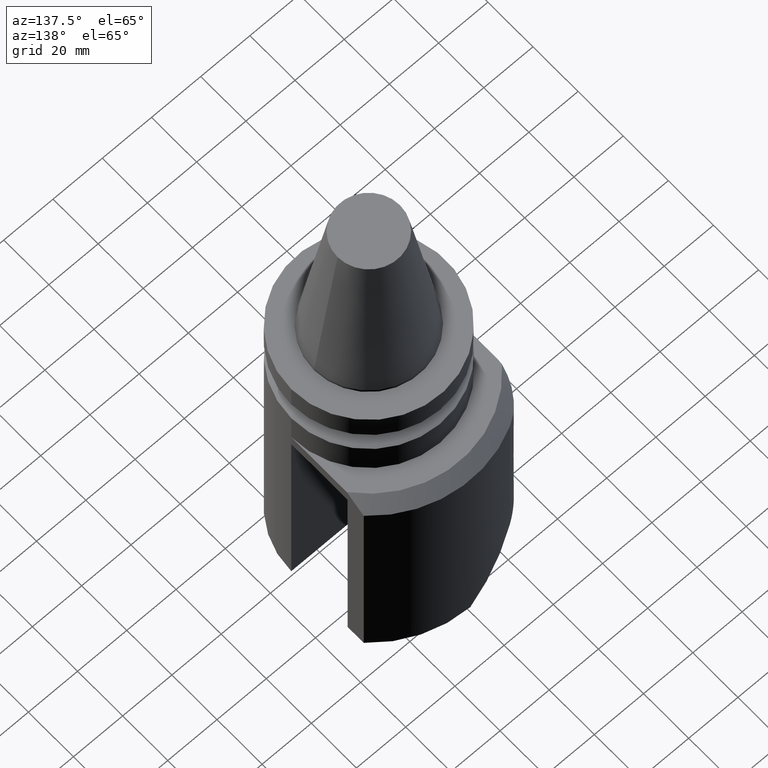
[diagram: clean part render]
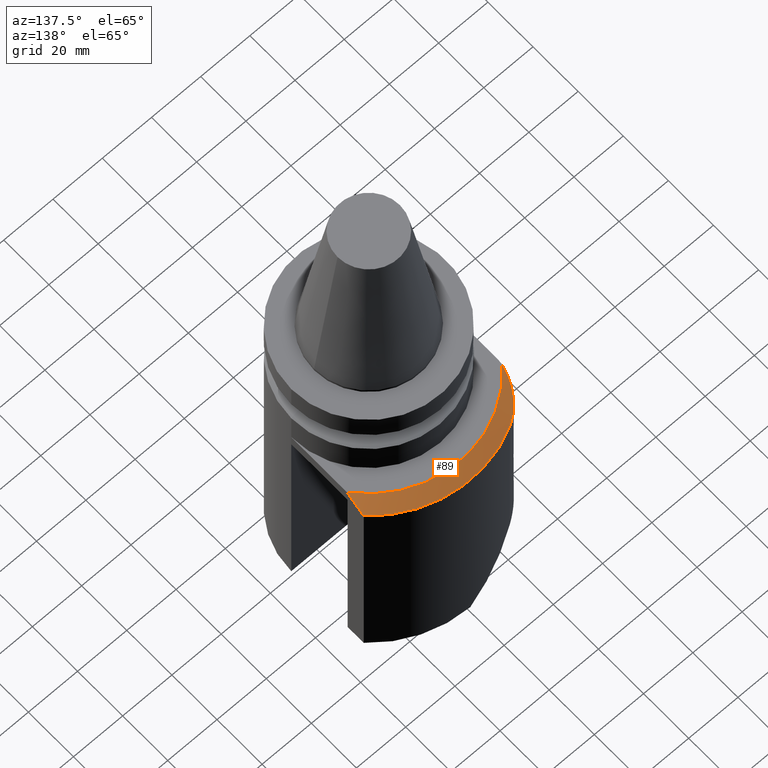
[diagram: same view with one face highlighted and labeled with its STEP entity id]
A machine part, auxiliary view. The second image highlights one B-rep face of the part: STEP entity #89.
In plain terms, the highlighted conical surface has half-angle 45 deg.
Its self-contained STEP definition (entity closure, byte-faithful):
#86=EDGE_CURVE('240[2]',#248,#249,#250,.T.);
#89=ADVANCED_FACE('240[2]',(#253),#254,.T.);
#115=EDGE_CURVE('240[2]',#297,#298,#299,.T.);
#182=EDGE_CURVE('240[2]',#248,#298,#387,.T.);
#214=EDGE_CURVE('240[2]',#249,#297,#431,.T.);
#248=VERTEX_POINT('',#459);
#249=VERTEX_POINT('',#460);
#250=B_SPLINE_CURVE_WITH_KNOTS('',3,(#461,#462,#463,#464,#465,#466,#467,#468,#469,#470,#471,#472),.UNSPECIFIED.,.F.,.F.,(4,2,2,2,2,4),(3.6448240647727,4.06943192137555,4.49403977797839,4.91864763458123,5.34325549118408,5.58489350391862),.UNSPECIFIED.);
#253=FACE_OUTER_BOUND('',#476,.T.);
#254=CONICAL_SURFACE('',#477,42.5,0.785398163397448);
#297=VERTEX_POINT('',#537);
#298=VERTEX_POINT('',#538);
#299=B_SPLINE_CURVE_WITH_KNOTS('',3,(#539,#540,#541,#542,#543,#544,#545),.UNSPECIFIED.,.F.,.F.,(4,3,4),(0.0,0.369362908378819,0.917538816278321),.UNSPECIFIED.);
#387=CIRCLE('',#669,45.0);
#431=CIRCLE('',#728,40.0);
#459=CARTESIAN_POINT('',(-20.7000000003111,39.9563511842665,-39.9999999997035));
#460=CARTESIAN_POINT('',(-31.3190777410008,24.8820290461439,-35.0));
#461=CARTESIAN_POINT('',(-20.7000000003111,39.9563511842665,-39.9999999997035));
#462=CARTESIAN_POINT('',(-21.9567244917306,39.3052858041324,-39.9999999997083));
#463=CARTESIAN_POINT('',(-23.1716294908664,38.5038773242289,-39.915406152038));
#464=CARTESIAN_POINT('',(-25.4050109414492,36.6465065579947,-39.5679453349064));
#465=CARTESIAN_POINT('',(-26.4235938720837,35.59066700866,-39.3051067052726));
#466=CARTESIAN_POINT('',(-28.1899230558646,33.312125702104,-38.6166259583971));
#467=CARTESIAN_POINT('',(-28.9398045203835,32.0867683818523,-38.1900288645896));
#468=CARTESIAN_POINT('',(-30.1408535510776,29.577243661181,-37.2088852936142));
#469=CARTESIAN_POINT('',(-30.5920445768402,28.2931767156501,-36.6541106110761));
#470=CARTESIAN_POINT('',(-31.0815476164028,26.3331686854598,-35.7317252069591));
#471=CARTESIAN_POINT('',(-31.2204576910933,25.6102397522291,-35.3757667732663));
#472=CARTESIAN_POINT('',(-31.3190777410008,24.8820290461439,-35.0));
#476=EDGE_LOOP('',(#760,#761,#762,#763));
#477=AXIS2_PLACEMENT_3D('',#764,#765,#766);
#537=CARTESIAN_POINT('',(31.4999999979768,24.6525860738272,-35.0));
#538=CARTESIAN_POINT('',(31.4999999979725,32.1364279304387,-40.0000000000122));
#539=CARTESIAN_POINT('',(31.4999999979768,24.6525860738272,-35.0));
#540=CARTESIAN_POINT('',(31.4999999979768,25.6197317923573,-35.5960660767999));
#541=CARTESIAN_POINT('',(31.4999999979768,26.606922859908,-36.2262107216744));
#542=CARTESIAN_POINT('',(31.4999999979768,27.6179245295397,-36.8927172094612));
#543=CARTESIAN_POINT('',(31.4999999979768,29.1183641935297,-37.8818874557838));
#544=CARTESIAN_POINT('',(31.4999999979725,30.6285284031306,-38.923144344775));
#545=CARTESIAN_POINT('',(31.4999999979725,32.1364279304387,-40.0000000000122));
#669=AXIS2_PLACEMENT_3D('',#906,#907,#908);
#728=AXIS2_PLACEMENT_3D('',#968,#969,#970);
#760=ORIENTED_EDGE('',*,*,#86,.T.);
#761=ORIENTED_EDGE('',*,*,#214,.T.);
#762=ORIENTED_EDGE('',*,*,#115,.T.);
#763=ORIENTED_EDGE('',*,*,#182,.F.);
#764=CARTESIAN_POINT('',(4.59242549680257E-015,-2.29621274840129E-015,-37.5));
#765=DIRECTION('',(1.22464679914735E-016,-6.12323399573677E-017,-1.0));
#766=DIRECTION('',(1.0,-1.83697019872103E-016,1.22464679914735E-016));
#906=CARTESIAN_POINT('',(4.89858719658941E-015,-2.44929359829471E-015,-40.0));
#907=DIRECTION('',(1.22464679914735E-016,-6.12323399573677E-017,-1.0));
#908=DIRECTION('',(1.0,-1.83697019872103E-016,1.22464679914735E-016));
#968=CARTESIAN_POINT('',(4.28626379701574E-015,-2.14313189850787E-015,-35.0));
#969=DIRECTION('',(1.22464679914735E-016,-6.12323399573677E-017,-1.0));
#970=DIRECTION('',(1.0,-1.83697019872103E-016,1.22464679914735E-016));